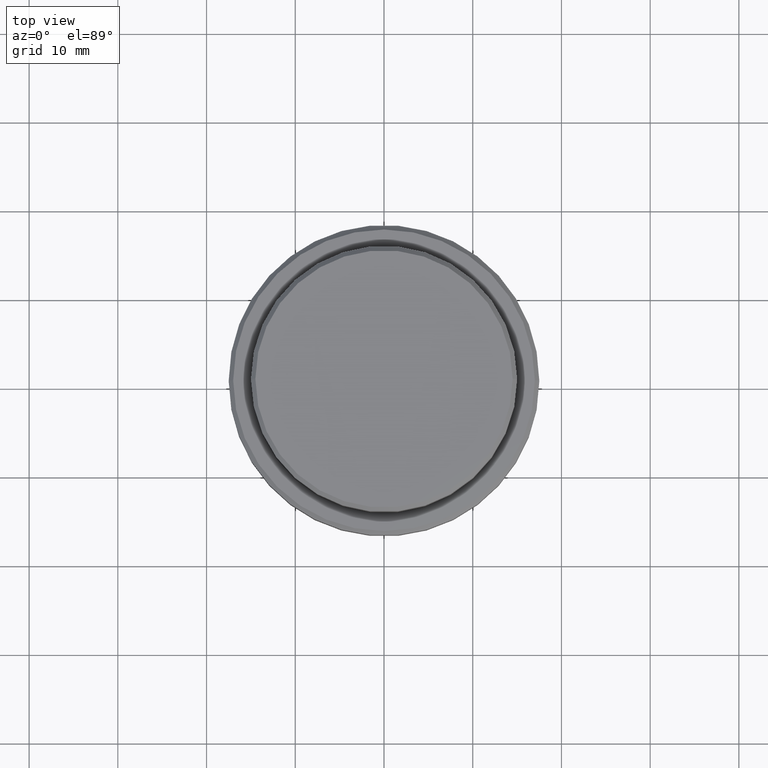
[diagram: clean part render]
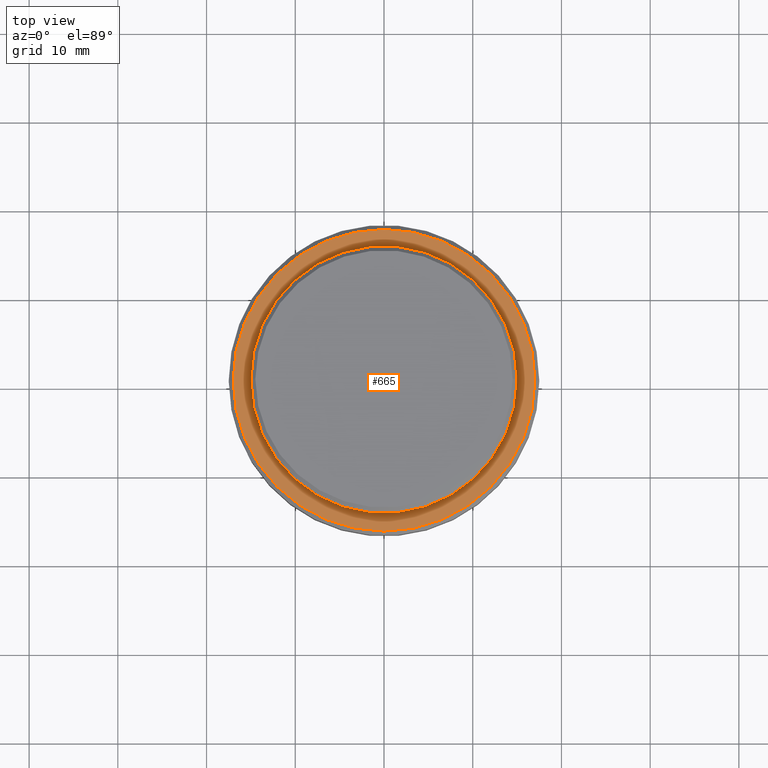
[diagram: same view with one face highlighted and labeled with its STEP entity id]
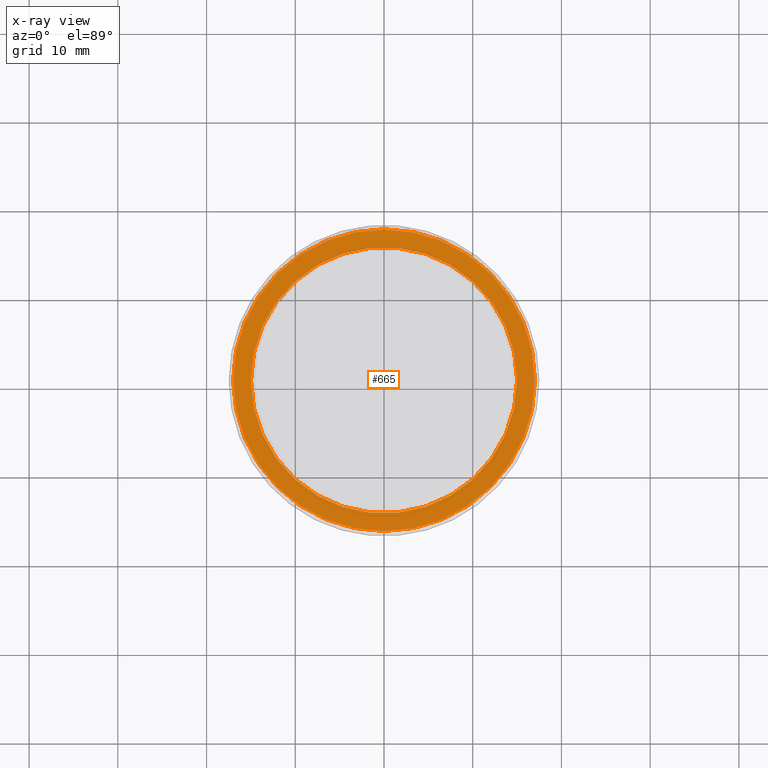
[diagram: x-ray of the same camera — body ghosted, the highlighted face saturated]
A machine part, top view. The second image highlights one B-rep face of the part: STEP entity #665.
The next image is the same camera in x-ray: the body ghosted, the highlighted face saturated — about 0% of this face is hidden behind the body in this view.
In plain terms, the highlighted planar face has unit normal (0, -0, 1).
Its self-contained STEP definition (entity closure, byte-faithful):
#4 = CARTESIAN_POINT ( 'NONE',  ( 0.000000000000000000, 0.000000000000000000, -9.000000000000000000 ) ) ;
#10 = ORIENTED_EDGE ( 'NONE', *, *, #842, .T. ) ;
#20 = EDGE_LOOP ( 'NONE', ( #638, #1047 ) ) ;
#65 = CIRCLE ( 'NONE', #1368, 17.00000000000002132 ) ;
#135 = CARTESIAN_POINT ( 'NONE',  ( 14.99999999999999289, 0.000000000000000000, -9.000000000000000000 ) ) ;
#181 = EDGE_LOOP ( 'NONE', ( #1228, #10 ) ) ;
#224 = DIRECTION ( 'NONE',  ( 1.000000000000000000, 0.000000000000000000, 0.000000000000000000 ) ) ;
#226 = CARTESIAN_POINT ( 'NONE',  ( 0.000000000000000000, 0.000000000000000000, -9.000000000000000000 ) ) ;
#245 = DIRECTION ( 'NONE',  ( -0.000000000000000000, -0.000000000000000000, 1.000000000000000000 ) ) ;
#260 = VERTEX_POINT ( 'NONE', #668 ) ;
#342 = DIRECTION ( 'NONE',  ( 0.000000000000000000, 0.000000000000000000, -1.000000000000000000 ) ) ;
#360 = EDGE_CURVE ( 'NONE', #846, #1267, #1191, .T. ) ;
#414 = CARTESIAN_POINT ( 'NONE',  ( 0.000000000000000000, 14.49999999999999467, -9.000000000000000000 ) ) ;
#418 = DIRECTION ( 'NONE',  ( 0.000000000000000000, -0.000000000000000000, 1.000000000000000000 ) ) ;
#429 = FACE_BOUND ( 'NONE', #20, .T. ) ;
#440 = DIRECTION ( 'NONE',  ( 1.000000000000000000, 0.000000000000000000, 0.000000000000000000 ) ) ;
#486 = AXIS2_PLACEMENT_3D ( 'NONE', #1089, #342, #224 ) ;
#509 = CARTESIAN_POINT ( 'NONE',  ( -17.00000000000002132, 0.000000000000000000, -9.000000000000000000 ) ) ;
#583 = CARTESIAN_POINT ( 'NONE',  ( -14.99999999999999289, 1.836970198721028800E-15, -9.000000000000000000 ) ) ;
#638 = ORIENTED_EDGE ( 'NONE', *, *, #360, .T. ) ;
#665 = ADVANCED_FACE ( 'NONE', ( #1082, #429 ), #1174, .T. ) ;
#668 = CARTESIAN_POINT ( 'NONE',  ( 17.00000000000002132, 2.112515728529185644E-15, -9.000000000000000000 ) ) ;
#677 = AXIS2_PLACEMENT_3D ( 'NONE', #841, #1299, #440 ) ;
#682 = EDGE_CURVE ( 'NONE', #1381, #260, #968, .T. ) ;
#688 = DIRECTION ( 'NONE',  ( 1.000000000000000000, 0.000000000000000000, 0.000000000000000000 ) ) ;
#841 = CARTESIAN_POINT ( 'NONE',  ( 0.000000000000000000, 0.000000000000000000, -9.000000000000000000 ) ) ;
#842 = EDGE_CURVE ( 'NONE', #260, #1381, #65, .T. ) ;
#846 = VERTEX_POINT ( 'NONE', #135 ) ;
#871 = CIRCLE ( 'NONE', #486, 14.99999999999999289 ) ;
#888 = DIRECTION ( 'NONE',  ( 0.000000000000000000, 0.000000000000000000, -1.000000000000000000 ) ) ;
#968 = CIRCLE ( 'NONE', #677, 17.00000000000002132 ) ;
#1047 = ORIENTED_EDGE ( 'NONE', *, *, #1258, .T. ) ;
#1077 = AXIS2_PLACEMENT_3D ( 'NONE', #226, #888, #688 ) ;
#1082 = FACE_OUTER_BOUND ( 'NONE', #181, .T. ) ;
#1089 = CARTESIAN_POINT ( 'NONE',  ( 0.000000000000000000, 0.000000000000000000, -9.000000000000000000 ) ) ;
#1122 = DIRECTION ( 'NONE',  ( 1.000000000000000000, 0.000000000000000000, 0.000000000000000000 ) ) ;
#1174 = PLANE ( 'NONE',  #1253 ) ;
#1191 = CIRCLE ( 'NONE', #1077, 14.99999999999999289 ) ;
#1196 = DIRECTION ( 'NONE',  ( 1.000000000000000000, 0.000000000000000000, 0.000000000000000000 ) ) ;
#1228 = ORIENTED_EDGE ( 'NONE', *, *, #682, .T. ) ;
#1253 = AXIS2_PLACEMENT_3D ( 'NONE', #414, #418, #1196 ) ;
#1258 = EDGE_CURVE ( 'NONE', #1267, #846, #871, .T. ) ;
#1267 = VERTEX_POINT ( 'NONE', #583 ) ;
#1299 = DIRECTION ( 'NONE',  ( -0.000000000000000000, -0.000000000000000000, 1.000000000000000000 ) ) ;
#1368 = AXIS2_PLACEMENT_3D ( 'NONE', #4, #245, #1122 ) ;
#1381 = VERTEX_POINT ( 'NONE', #509 ) ;